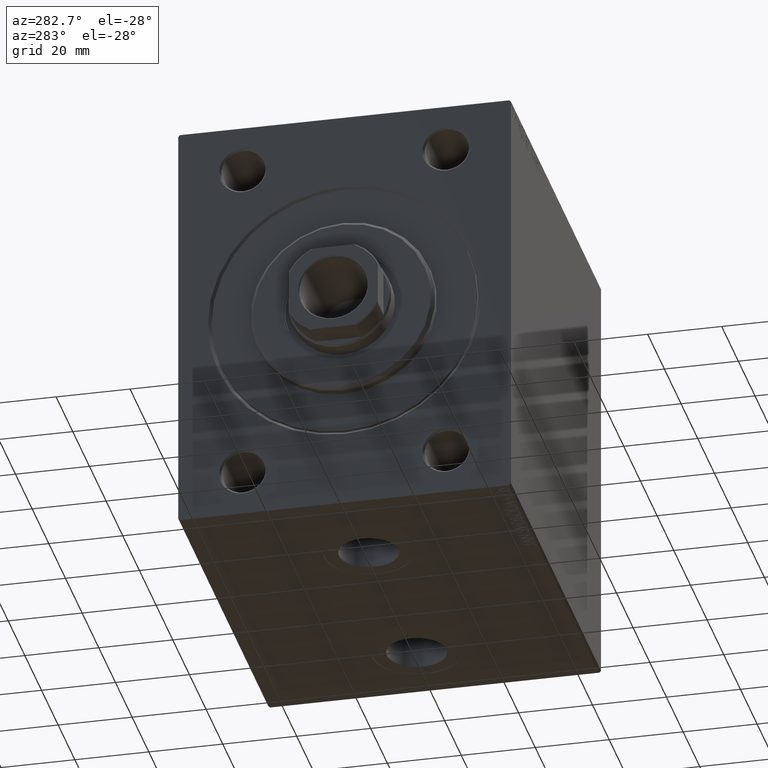
[diagram: clean part render]
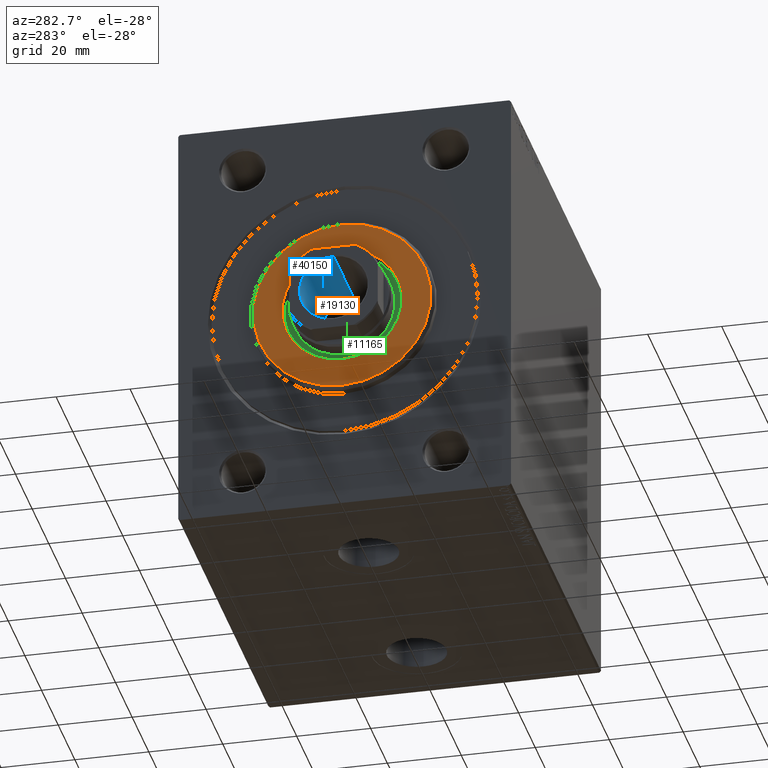
[diagram: same view with three faces highlighted in distinct colors, each labeled with its STEP entity id]
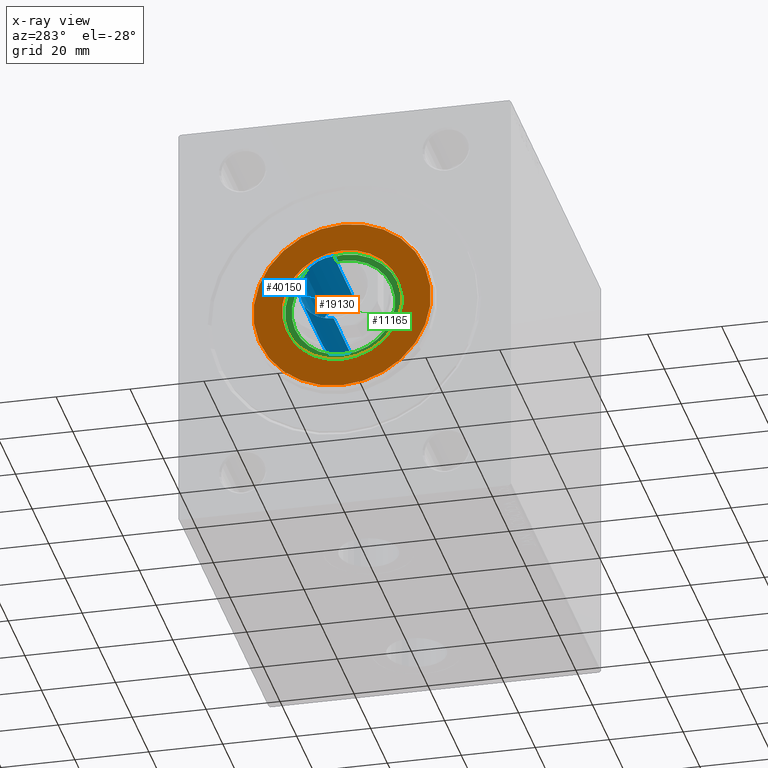
[diagram: x-ray of the same camera — body ghosted, the three highlighted faces saturated]
A machine part, auxiliary view with three faces highlighted in distinct colors.
The next image is the same camera in x-ray (body ghosted, the three faces saturated) — at least one of them is partly hidden behind the body in this view.
Their STEP definitions:

[orange] entity #19130 — the highlighted planar face has unit normal (-1, 0, 0).
#223 = DIRECTION ( 'NONE',  ( 1.000000000000000000, 0.000000000000000000, 0.000000000000000000 ) ) ;
#838 = VERTEX_POINT ( 'NONE', #2866 ) ;
#2547 = VERTEX_POINT ( 'NONE', #42079 ) ;
#2866 = CARTESIAN_POINT ( 'NONE',  ( 3.000000000000000000, 3.000384657911015469E-15, -24.00000000000000711 ) ) ;
#3009 = DIRECTION ( 'NONE',  ( 0.000000000000000000, 0.000000000000000000, -1.000000000000000000 ) ) ;
#3117 = FACE_BOUND ( 'NONE', #29811, .T. ) ;
#3500 = CARTESIAN_POINT ( 'NONE',  ( 3.000000000000000000, 0.000000000000000000, 0.000000000000000000 ) ) ;
#3813 = CARTESIAN_POINT ( 'NONE',  ( 3.000000000000000000, 1.990051048614449313E-15, 16.25000000000000000 ) ) ;
#7265 = CARTESIAN_POINT ( 'NONE',  ( 3.000000000000000000, 0.000000000000000000, 0.000000000000000000 ) ) ;
#9281 = EDGE_CURVE ( 'NONE', #24496, #35444, #12462, .T. ) ;
#10436 = AXIS2_PLACEMENT_3D ( 'NONE', #27957, #223, #3009 ) ;
#10506 = PLANE ( 'NONE',  #39144 ) ;
#11326 = CIRCLE ( 'NONE', #20943, 24.00000000000000711 ) ;
#12462 = CIRCLE ( 'NONE', #28669, 16.25000000000000000 ) ;
#12694 = DIRECTION ( 'NONE',  ( 0.000000000000000000, 0.000000000000000000, -1.000000000000000000 ) ) ;
#16612 = CARTESIAN_POINT ( 'NONE',  ( 3.000000000000000000, 0.000000000000000000, 0.000000000000000000 ) ) ;
#17099 = EDGE_CURVE ( 'NONE', #35444, #24496, #29631, .T. ) ;
#17363 = DIRECTION ( 'NONE',  ( 1.000000000000000000, -0.000000000000000000, 0.000000000000000000 ) ) ;
#19130 = ADVANCED_FACE ( 'NONE', ( #20678, #3117 ), #10506, .T. ) ;
#19645 = EDGE_CURVE ( 'NONE', #838, #2547, #36949, .T. ) ;
#20678 = FACE_OUTER_BOUND ( 'NONE', #25313, .T. ) ;
#20943 = AXIS2_PLACEMENT_3D ( 'NONE', #3500, #17363, #31457 ) ;
#21402 = ORIENTED_EDGE ( 'NONE', *, *, #39151, .T. ) ;
#22222 = AXIS2_PLACEMENT_3D ( 'NONE', #16612, #41093, #12694 ) ;
#24496 = VERTEX_POINT ( 'NONE', #3813 ) ;
#25313 = EDGE_LOOP ( 'NONE', ( #21402, #38515 ) ) ;
#26257 = CARTESIAN_POINT ( 'NONE',  ( 3.000000000000000000, 0.000000000000000000, 0.000000000000000000 ) ) ;
#26478 = DIRECTION ( 'NONE',  ( 1.000000000000000000, 0.000000000000000000, 0.000000000000000000 ) ) ;
#27957 = CARTESIAN_POINT ( 'NONE',  ( 3.000000000000000000, 0.000000000000000000, 0.000000000000000000 ) ) ;
#28669 = AXIS2_PLACEMENT_3D ( 'NONE', #26257, #26478, #40106 ) ;
#29631 = CIRCLE ( 'NONE', #10436, 16.25000000000000000 ) ;
#29811 = EDGE_LOOP ( 'NONE', ( #39284, #43802 ) ) ;
#31302 = DIRECTION ( 'NONE',  ( 1.000000000000000000, -0.000000000000000000, 0.000000000000000000 ) ) ;
#31457 = DIRECTION ( 'NONE',  ( 0.000000000000000000, 0.000000000000000000, -1.000000000000000000 ) ) ;
#35444 = VERTEX_POINT ( 'NONE', #42788 ) ;
#36949 = CIRCLE ( 'NONE', #22222, 24.00000000000000711 ) ;
#38515 = ORIENTED_EDGE ( 'NONE', *, *, #19645, .T. ) ;
#39127 = DIRECTION ( 'NONE',  ( 0.000000000000000000, 0.000000000000000000, -1.000000000000000000 ) ) ;
#39144 = AXIS2_PLACEMENT_3D ( 'NONE', #7265, #31302, #39127 ) ;
#39151 = EDGE_CURVE ( 'NONE', #2547, #838, #11326, .T. ) ;
#39284 = ORIENTED_EDGE ( 'NONE', *, *, #17099, .F. ) ;
#40106 = DIRECTION ( 'NONE',  ( 0.000000000000000000, 0.000000000000000000, -1.000000000000000000 ) ) ;
#41093 = DIRECTION ( 'NONE',  ( 1.000000000000000000, -0.000000000000000000, 0.000000000000000000 ) ) ;
#42079 = CARTESIAN_POINT ( 'NONE',  ( 3.000000000000000000, 0.000000000000000000, 24.00000000000000711 ) ) ;
#42788 = CARTESIAN_POINT ( 'NONE',  ( 3.000000000000000000, 0.000000000000000000, -16.25000000000000000 ) ) ;
#43802 = ORIENTED_EDGE ( 'NONE', *, *, #9281, .F. ) ;

[blue] entity #40150 — the highlighted cylindrical surface (edge-blend (fillet) strip) has radius 9.25 mm, axis along (-1, 0, 0).
#3840 = VERTEX_POINT ( 'NONE', #34549 ) ;
#6165 = DIRECTION ( 'NONE',  ( -0.000000000000000000, -0.000000000000000000, 1.000000000000000000 ) ) ;
#6283 = DIRECTION ( 'NONE',  ( 0.000000000000000000, 0.000000000000000000, 1.000000000000000000 ) ) ;
#7320 = ORIENTED_EDGE ( 'NONE', *, *, #11817, .T. ) ;
#7885 = CARTESIAN_POINT ( 'NONE',  ( 0.000000000000000000, 0.000000000000000000, 104.0000000000000142 ) ) ;
#7897 = EDGE_CURVE ( 'NONE', #8113, #9534, #12643, .T. ) ;
#8113 = VERTEX_POINT ( 'NONE', #13993 ) ;
#9534 = VERTEX_POINT ( 'NONE', #38903 ) ;
#10634 = AXIS2_PLACEMENT_3D ( 'NONE', #7885, #11797, #39975 ) ;
#11295 = AXIS2_PLACEMENT_3D ( 'NONE', #23848, #6283, #44870 ) ;
#11797 = DIRECTION ( 'NONE',  ( -0.000000000000000000, -0.000000000000000000, 1.000000000000000000 ) ) ;
#11817 = EDGE_CURVE ( 'NONE', #3840, #39633, #27598, .T. ) ;
#12643 = LINE ( 'NONE', #27196, #24201 ) ;
#13086 = DIRECTION ( 'NONE',  ( 1.000000000000000000, 0.000000000000000000, 0.000000000000000000 ) ) ;
#13993 = CARTESIAN_POINT ( 'NONE',  ( -9.249999999999994671, 1.132798289211300909E-15, 79.00000000000001421 ) ) ;
#15821 = ORIENTED_EDGE ( 'NONE', *, *, #37461, .T. ) ;
#17199 = CIRCLE ( 'NONE', #11295, 9.249999999999994671 ) ;
#17681 = VECTOR ( 'NONE', #38206, 1000.000000000000000 ) ;
#18904 = ORIENTED_EDGE ( 'NONE', *, *, #43981, .F. ) ;
#19588 = CIRCLE ( 'NONE', #40247, 9.249999999999994671 ) ;
#23848 = CARTESIAN_POINT ( 'NONE',  ( 0.000000000000000000, 0.000000000000000000, 103.6999999999999886 ) ) ;
#24201 = VECTOR ( 'NONE', #6165, 1000.000000000000000 ) ;
#24580 = CARTESIAN_POINT ( 'NONE',  ( 9.249999999999994671, 0.000000000000000000, 104.0000000000000142 ) ) ;
#25271 = CARTESIAN_POINT ( 'NONE',  ( 9.249999999999994671, 0.000000000000000000, 103.6999999999999886 ) ) ;
#25672 = CYLINDRICAL_SURFACE ( 'NONE', #10634, 9.249999999999994671 ) ;
#27196 = CARTESIAN_POINT ( 'NONE',  ( -9.249999999999994671, 1.132798289211300909E-15, 104.0000000000000142 ) ) ;
#27598 = LINE ( 'NONE', #24580, #17681 ) ;
#34549 = CARTESIAN_POINT ( 'NONE',  ( 9.249999999999994671, 0.000000000000000000, 79.00000000000001421 ) ) ;
#37461 = EDGE_CURVE ( 'NONE', #39633, #9534, #17199, .T. ) ;
#38012 = DIRECTION ( 'NONE',  ( -0.000000000000000000, -0.000000000000000000, 1.000000000000000000 ) ) ;
#38206 = DIRECTION ( 'NONE',  ( -0.000000000000000000, -0.000000000000000000, 1.000000000000000000 ) ) ;
#38615 = ORIENTED_EDGE ( 'NONE', *, *, #7897, .F. ) ;
#38903 = CARTESIAN_POINT ( 'NONE',  ( -9.249999999999994671, 1.132798289211300909E-15, 103.6999999999999886 ) ) ;
#39633 = VERTEX_POINT ( 'NONE', #25271 ) ;
#39975 = DIRECTION ( 'NONE',  ( 1.000000000000000000, 0.000000000000000000, 0.000000000000000000 ) ) ;
#40150 = ADVANCED_FACE ( 'NONE', ( #40205 ), #25672, .F. ) ;
#40205 = FACE_OUTER_BOUND ( 'NONE', #45327, .T. ) ;
#40247 = AXIS2_PLACEMENT_3D ( 'NONE', #45627, #38012, #13086 ) ;
#43981 = EDGE_CURVE ( 'NONE', #3840, #8113, #19588, .T. ) ;
#44870 = DIRECTION ( 'NONE',  ( 1.000000000000000000, 0.000000000000000000, 0.000000000000000000 ) ) ;
#45327 = EDGE_LOOP ( 'NONE', ( #38615, #18904, #7320, #15821 ) ) ;
#45627 = CARTESIAN_POINT ( 'NONE',  ( 0.000000000000000000, 0.000000000000000000, 79.00000000000001421 ) ) ;

[green] entity #11165 — the highlighted planar face has unit normal (-1, 0, 0).
#837 = EDGE_LOOP ( 'NONE', ( #10322, #19888 ) ) ;
#2172 = AXIS2_PLACEMENT_3D ( 'NONE', #36567, #5143, #5372 ) ;
#2260 = DIRECTION ( 'NONE',  ( 1.000000000000000000, 0.000000000000000000, 0.000000000000000000 ) ) ;
#2603 = EDGE_CURVE ( 'NONE', #37764, #17034, #33042, .T. ) ;
#4189 = DIRECTION ( 'NONE',  ( 1.000000000000000000, 0.000000000000000000, 0.000000000000000000 ) ) ;
#5143 = DIRECTION ( 'NONE',  ( 1.000000000000000000, 0.000000000000000000, 0.000000000000000000 ) ) ;
#5372 = DIRECTION ( 'NONE',  ( 0.000000000000000000, 0.000000000000000000, -1.000000000000000000 ) ) ;
#10090 = VERTEX_POINT ( 'NONE', #43577 ) ;
#10322 = ORIENTED_EDGE ( 'NONE', *, *, #39378, .F. ) ;
#10882 = CARTESIAN_POINT ( 'NONE',  ( 1.499999999999999556, 0.000000000000000000, -14.00000000000000178 ) ) ;
#11165 = ADVANCED_FACE ( 'NONE', ( #43722, #15550 ), #37256, .T. ) ;
#11782 = DIRECTION ( 'NONE',  ( 0.000000000000000000, 0.000000000000000000, -1.000000000000000000 ) ) ;
#12024 = CIRCLE ( 'NONE', #17917, 15.75000000000000000 ) ;
#13794 = DIRECTION ( 'NONE',  ( 0.000000000000000000, 0.000000000000000000, -1.000000000000000000 ) ) ;
#13875 = CARTESIAN_POINT ( 'NONE',  ( 1.500000000000000000, 1.928818708657080950E-15, -15.75000000000000000 ) ) ;
#15550 = FACE_OUTER_BOUND ( 'NONE', #22574, .T. ) ;
#15951 = CARTESIAN_POINT ( 'NONE',  ( 1.499999999999999556, 0.000000000000000000, 0.000000000000000000 ) ) ;
#17034 = VERTEX_POINT ( 'NONE', #13875 ) ;
#17917 = AXIS2_PLACEMENT_3D ( 'NONE', #37474, #26864, #22939 ) ;
#19766 = AXIS2_PLACEMENT_3D ( 'NONE', #33280, #4189, #35835 ) ;
#19888 = ORIENTED_EDGE ( 'NONE', *, *, #25476, .F. ) ;
#21693 = AXIS2_PLACEMENT_3D ( 'NONE', #31345, #2260, #13794 ) ;
#22574 = EDGE_LOOP ( 'NONE', ( #22678, #26475 ) ) ;
#22678 = ORIENTED_EDGE ( 'NONE', *, *, #2603, .T. ) ;
#22939 = DIRECTION ( 'NONE',  ( 0.000000000000000000, 0.000000000000000000, -1.000000000000000000 ) ) ;
#23112 = CIRCLE ( 'NONE', #44509, 14.00000000000000178 ) ;
#25476 = EDGE_CURVE ( 'NONE', #10090, #41205, #23112, .T. ) ;
#26475 = ORIENTED_EDGE ( 'NONE', *, *, #37372, .T. ) ;
#26864 = DIRECTION ( 'NONE',  ( 1.000000000000000000, 0.000000000000000000, 0.000000000000000000 ) ) ;
#31345 = CARTESIAN_POINT ( 'NONE',  ( 1.499999999999999556, 0.000000000000000000, 0.000000000000000000 ) ) ;
#33042 = CIRCLE ( 'NONE', #19766, 15.75000000000000000 ) ;
#33280 = CARTESIAN_POINT ( 'NONE',  ( 1.500000000000000000, 0.000000000000000000, 0.000000000000000000 ) ) ;
#35835 = DIRECTION ( 'NONE',  ( 0.000000000000000000, 0.000000000000000000, -1.000000000000000000 ) ) ;
#36567 = CARTESIAN_POINT ( 'NONE',  ( 1.500000000000000000, 0.000000000000000000, 0.000000000000000000 ) ) ;
#36735 = DIRECTION ( 'NONE',  ( 1.000000000000000000, 0.000000000000000000, 0.000000000000000000 ) ) ;
#37166 = CIRCLE ( 'NONE', #21693, 14.00000000000000178 ) ;
#37256 = PLANE ( 'NONE',  #2172 ) ;
#37372 = EDGE_CURVE ( 'NONE', #17034, #37764, #12024, .T. ) ;
#37474 = CARTESIAN_POINT ( 'NONE',  ( 1.500000000000000000, 0.000000000000000000, 0.000000000000000000 ) ) ;
#37642 = CARTESIAN_POINT ( 'NONE',  ( 1.500000000000000000, 0.000000000000000000, 15.75000000000000000 ) ) ;
#37764 = VERTEX_POINT ( 'NONE', #37642 ) ;
#39378 = EDGE_CURVE ( 'NONE', #41205, #10090, #37166, .T. ) ;
#41205 = VERTEX_POINT ( 'NONE', #10882 ) ;
#43577 = CARTESIAN_POINT ( 'NONE',  ( 1.499999999999999556, 1.714505518806294441E-15, 14.00000000000000178 ) ) ;
#43722 = FACE_BOUND ( 'NONE', #837, .T. ) ;
#44509 = AXIS2_PLACEMENT_3D ( 'NONE', #15951, #36735, #11782 ) ;